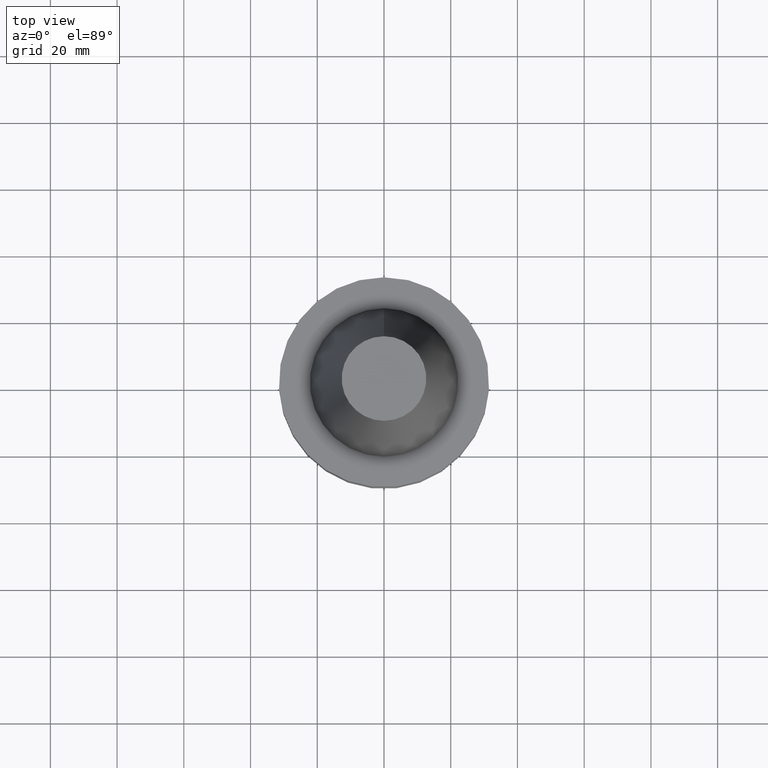
[diagram: clean part render]
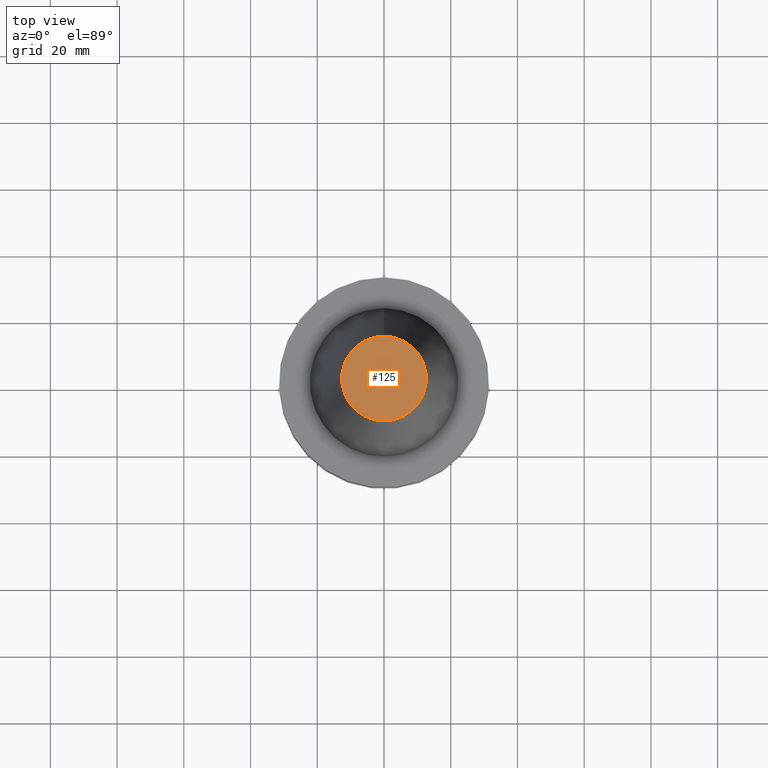
[diagram: same view with one face highlighted and labeled with its STEP entity id]
A machine part, top view. The second image highlights one B-rep face of the part: STEP entity #125.
In plain terms, the highlighted planar face has unit normal (-0, 0, 1).
Its self-contained STEP definition (entity closure, byte-faithful):
#125=ADVANCED_FACE('Unnamed[1]',(#280),#281,.T.);
#133=EDGE_CURVE('Unnamed[1]',#293,#293,#294,.T.);
#280=FACE_OUTER_BOUND('',#475,.T.);
#281=PLANE('',#476);
#293=VERTEX_POINT('',#491);
#294=CIRCLE('',#492,12.6875000000001);
#475=EDGE_LOOP('',(#670));
#476=AXIS2_PLACEMENT_3D('',#671,#672,#673);
#491=CARTESIAN_POINT('',(-4.00459503321185E-015,12.6875000000002,65.4000000000001));
#492=AXIS2_PLACEMENT_3D('',#686,#687,#688);
#670=ORIENTED_EDGE('',*,*,#133,.F.);
#671=CARTESIAN_POINT('',(-4.00459503321185E-015,6.34375000000014,65.4000000000001));
#672=DIRECTION('',(-6.12323399573677E-017,9.97602686800683E-016,1.0));
#673=DIRECTION('',(-5.62583941297938E-032,-1.0,9.97602686800683E-016));
#686=CARTESIAN_POINT('',(-4.00459503321185E-015,7.70745411825888E-014,65.4000000000001));
#687=DIRECTION('',(6.12323399573677E-017,-9.38040710727152E-017,-1.0));
#688=DIRECTION('',(9.16690038533611E-034,1.0,-9.38040710727152E-017));